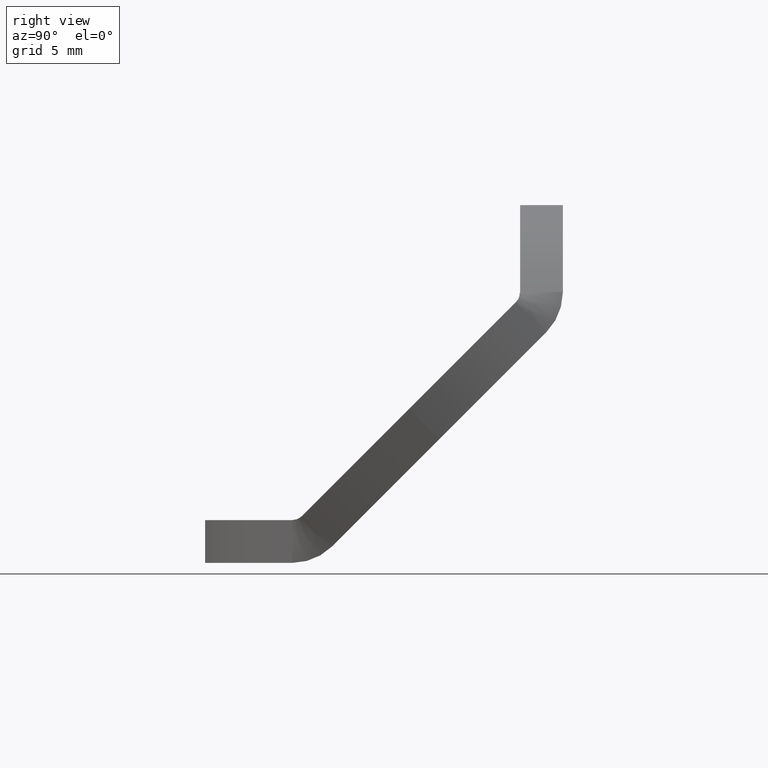
[diagram: clean part render]
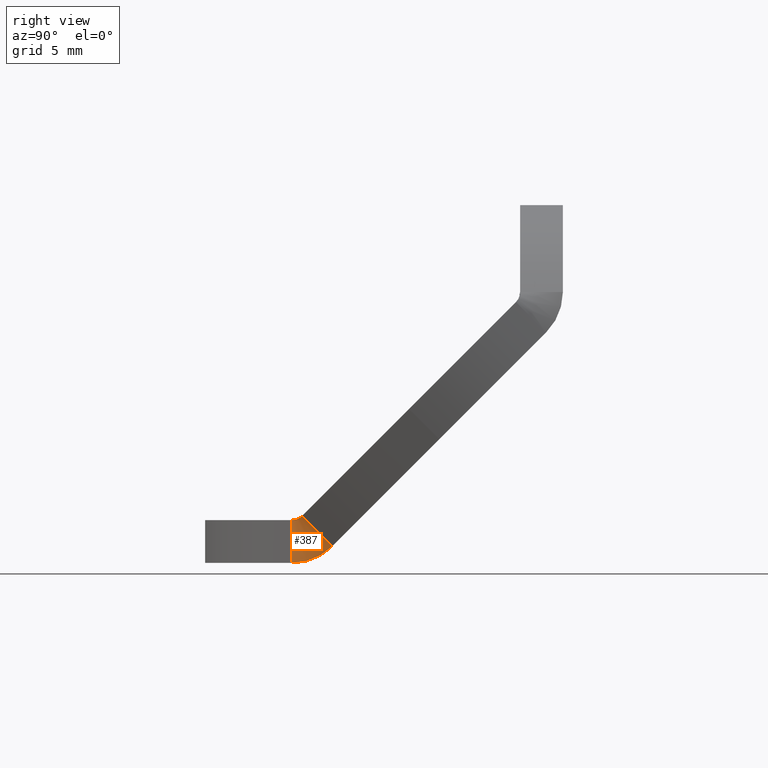
[diagram: same view with one face highlighted and labeled with its STEP entity id]
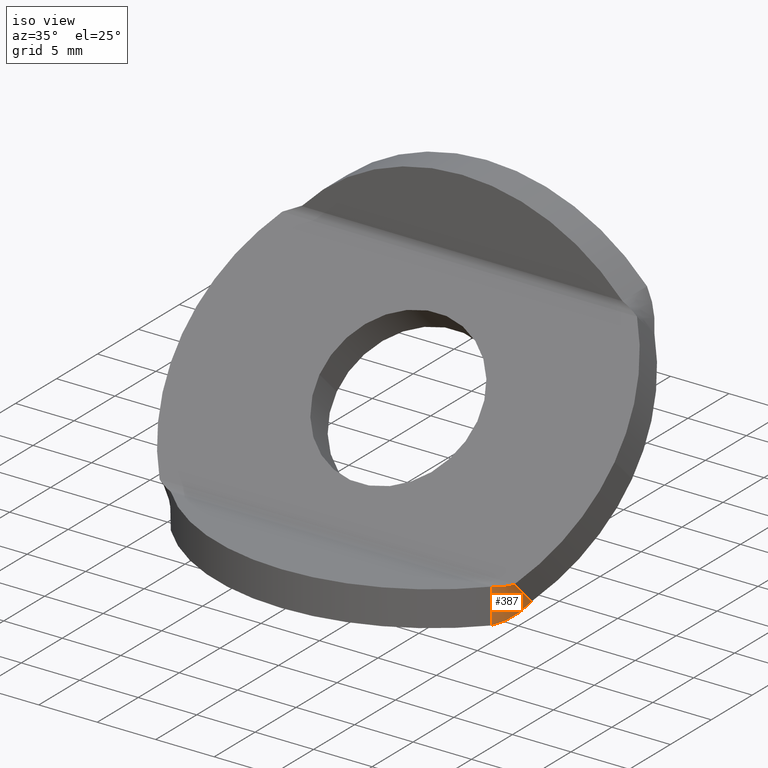
[diagram: same view with one face highlighted and labeled with its STEP entity id]
A machine part, right view. The second image highlights one B-rep face of the part: STEP entity #387.
A second angle (iso view) of the same face is appended — the face is thin or edge-on in the first view.
In plain terms, the highlighted face is a freeform B-spline surface patch.
Its self-contained STEP definition (entity closure, byte-faithful):
#109=CARTESIAN_POINT('',(35.831263199275767,-6.660618388563987,3.292893218813453));
#110=VERTEX_POINT('',#109);
#118=CARTESIAN_POINT('',(35.831263199275767,-5.725246501533150,2.357521331782615));
#119=VERTEX_POINT('',#118);
#120=CARTESIAN_POINT('',(35.831263199275767,-6.660618388563987,3.292893218813453));
#121=DIRECTION('',(0.0,0.707106781186547,-0.707106781186548));
#122=VECTOR('',#121,1.322815608501525);
#123=LINE('',#120,#122);
#124=EDGE_CURVE('',#110,#119,#123,.T.);
#126=CARTESIAN_POINT('',(35.831263199275767,-4.539298045004344,1.171572875253811));
#127=VERTEX_POINT('',#126);
#128=CARTESIAN_POINT('',(35.831263199275767,-5.725246501533150,2.357521331782615));
#129=DIRECTION('',(0.0,0.707106781186548,-0.707106781186547));
#130=VECTOR('',#129,1.677184391498475);
#131=LINE('',#128,#130);
#132=EDGE_CURVE('',#119,#127,#131,.T.);
#186=CARTESIAN_POINT('',(35.831263199275767,-6.660618852617905,3.292893682867370));
#187=CARTESIAN_POINT('',(35.831263199275767,-6.349491714211185,2.981766544460650));
#188=CARTESIAN_POINT('',(35.831263199275767,-5.642384756991387,2.274659587240853));
#189=CARTESIAN_POINT('',(35.831263199275767,-4.935277799771589,1.567552630021055));
#190=CARTESIAN_POINT('',(35.831263199275767,-4.539297980958510,1.171572811207978));
#191=CARTESIAN_POINT('',(35.815899758778649,-6.667323320050766,3.286189152138234));
#192=CARTESIAN_POINT('',(35.815907731569567,-6.359140559978749,2.972117600094008));
#193=CARTESIAN_POINT('',(35.815915628322557,-5.658716179519765,2.258327982825376));
#194=CARTESIAN_POINT('',(35.815922139824231,-4.958292024686895,1.544538140690138));
#195=CARTESIAN_POINT('',(35.815925398754430,-4.566054641072848,1.144815840672243));
#196=CARTESIAN_POINT('',(35.785240938505531,-6.680843694421913,3.273047996936107));
#197=CARTESIAN_POINT('',(35.785237246469599,-6.378618085629675,2.953186161142398));
#198=CARTESIAN_POINT('',(35.785233589645266,-5.691746128453477,2.226223369352703));
#199=CARTESIAN_POINT('',(35.785230574302403,-5.004874066794455,1.499260681694122));
#200=CARTESIAN_POINT('',(35.785229065158667,-4.620225756447859,1.092161686744138));
#201=CARTESIAN_POINT('',(35.738785956804762,-6.701680703705632,3.253910522054242));
#202=CARTESIAN_POINT('',(35.738786942792714,-6.408620109215452,2.925631463585142));
#203=CARTESIAN_POINT('',(35.738787919377124,-5.742572332302933,2.179544015741982));
#204=CARTESIAN_POINT('',(35.738788724648742,-5.076524583293394,1.433456540089769));
#205=CARTESIAN_POINT('',(35.738789127677741,-4.703537924828990,1.015647627002568));
#206=CARTESIAN_POINT('',(35.692081404722089,-6.722971070431437,3.235438184107938));
#207=CARTESIAN_POINT('',(35.692081141414384,-6.439279124146017,2.899030412695012));
#208=CARTESIAN_POINT('',(35.692080880617880,-5.794525164339406,2.134467182208982));
#209=CARTESIAN_POINT('',(35.692080665570401,-5.149771197081315,1.369903959149348));
#210=CARTESIAN_POINT('',(35.692080557941658,-4.788709043637357,0.941748639933639));
#211=CARTESIAN_POINT('',(35.645083877038161,-6.744708331186145,3.217624660615377));
#212=CARTESIAN_POINT('',(35.645083947352148,-6.470580556720187,2.873379163457848));
#213=CARTESIAN_POINT('',(35.645084016995547,-5.847562961075440,2.091003308787390));
#214=CARTESIAN_POINT('',(35.645084074422073,-5.224545367420544,1.308627452133779));
#215=CARTESIAN_POINT('',(35.645084103163377,-4.875655583606889,0.870497057273172));
#216=CARTESIAN_POINT('',(35.597806087564635,-6.766866017583363,3.200482823919065));
#217=CARTESIAN_POINT('',(35.597806068788508,-6.502487698850005,2.848694847526240));
#218=CARTESIAN_POINT('',(35.597806050191444,-5.901628054340178,2.049176896185617));
#219=CARTESIAN_POINT('',(35.597806034856688,-5.300768409298996,1.249658945374559));
#220=CARTESIAN_POINT('',(35.597806027181825,-4.964287073544817,0.801928980399808));
#221=CARTESIAN_POINT('',(35.550245770239492,-6.789422893670960,3.184019439127598));
#222=CARTESIAN_POINT('',(35.550245775253181,-6.534969595182076,2.824987581730910));
#223=CARTESIAN_POINT('',(35.550245780219043,-5.956666781841663,2.009006295973304));
#224=CARTESIAN_POINT('',(35.550245784313795,-5.378363968643134,1.193025010074290));
#225=CARTESIAN_POINT('',(35.550245786363163,-5.054514456455893,0.736075579050329));
#226=CARTESIAN_POINT('',(35.502404666007536,-6.812356250197622,3.168241926923253));
#227=CARTESIAN_POINT('',(35.502404664668802,-6.567993644674016,2.802267951700754));
#228=CARTESIAN_POINT('',(35.502404663342837,-6.012624226066477,1.970509122026132));
#229=CARTESIAN_POINT('',(35.502404662249475,-5.457254807421053,1.138750292389269));
#230=CARTESIAN_POINT('',(35.502404661702258,-5.146247993625715,0.672965438648220));
#231=CARTESIAN_POINT('',(35.454283452529815,-6.835643728635121,3.153156564665723));
#232=CARTESIAN_POINT('',(35.454283452887267,-6.601527624253395,2.780545023581658));
#233=CARTESIAN_POINT('',(35.454283453241310,-6.069445700505214,1.933700822648121));
#234=CARTESIAN_POINT('',(35.454283453533243,-5.537363776767150,1.086856621704504));
#235=CARTESIAN_POINT('',(35.454283453679352,-5.239397957590647,0.612623961665170));
#236=CARTESIAN_POINT('',(35.405883098092595,-6.859262866812791,3.138768974902862));
#237=CARTESIAN_POINT('',(35.405883097997162,-6.635539195533926,2.759826886704039));
#238=CARTESIAN_POINT('',(35.405883097902631,-6.127076432587769,1.898595081741004));
#239=CARTESIAN_POINT('',(35.405883097824685,-5.618613669638911,1.037363276780661));
#240=CARTESIAN_POINT('',(35.405883097785669,-5.333874577920904,0.555073560067142));
#241=CARTESIAN_POINT('',(35.357204500060043,-6.883191252305485,3.125084004137742));
#242=CARTESIAN_POINT('',(35.357204500085530,-6.669996082702673,2.740120521941591));
#243=CARTESIAN_POINT('',(35.357204500110768,-6.185461726577585,1.865203734157314));
#244=CARTESIAN_POINT('',(35.357204500131580,-5.700927370453218,0.990286946372319));
#245=CARTESIAN_POINT('',(35.357204500141989,-5.429588183944481,0.500333640770657));
#246=CARTESIAN_POINT('',(35.308248581391027,-6.907406512861080,3.112105765437423));
#247=CARTESIAN_POINT('',(35.308248581384227,-6.704866070215021,2.721431851603851));
#248=CARTESIAN_POINT('',(35.308248581377491,-6.244546996654339,1.833536813282505));
#249=CARTESIAN_POINT('',(35.308248581371934,-5.784227923093465,0.945641774961350));
#250=CARTESIAN_POINT('',(35.308248581369149,-5.526449292175230,0.448420650477188));
#251=CARTESIAN_POINT('',(35.259016264846537,-6.931886349633261,3.099837638283221));
#252=CARTESIAN_POINT('',(35.259016264848348,-6.740117047584850,2.703765742281554));
#253=CARTESIAN_POINT('',(35.259016264850146,-6.304277832932344,1.803602565724291));
#254=CARTESIAN_POINT('',(35.259016264851624,-5.868438618279890,0.903439389166978));
#255=CARTESIAN_POINT('',(35.259016264852363,-5.624368705676758,0.399348108610418));
#256=CARTESIAN_POINT('',(35.209508479853994,-6.956608558249821,3.088282280788955));
#257=CARTESIAN_POINT('',(35.209508479853518,-6.775717040541236,2.687126021623661));
#258=CARTESIAN_POINT('',(35.209508479853049,-6.364600056890614,1.775407477105674));
#259=CARTESIAN_POINT('',(35.209508479852659,-5.953483073239978,0.863688932587699));
#260=CARTESIAN_POINT('',(35.209508479852460,-5.723257607297692,0.353126647235263));
#261=CARTESIAN_POINT('',(35.159726160653236,-6.981551052366527,3.077441639529585));
#262=CARTESIAN_POINT('',(35.159726160653321,-6.811634244727634,2.671515492708789));
#263=CARTESIAN_POINT('',(35.159726160653406,-6.425459777770658,1.748956297119944));
#264=CARTESIAN_POINT('',(35.159726160653470,-6.039285310813685,0.826397101531096));
#265=CARTESIAN_POINT('',(35.159726160653506,-5.823027651495639,0.309764052762978));
#266=CARTESIAN_POINT('',(35.109670246766086,-7.006691885772492,3.067316960881083));
#267=CARTESIAN_POINT('',(35.109670246766179,-6.847837057591590,2.656935950316388));
#268=CARTESIAN_POINT('',(35.109670246766321,-6.486803446798386,1.724252066913524));
#269=CARTESIAN_POINT('',(35.109670246766434,-6.125769836005182,0.791568183510661));
#270=CARTESIAN_POINT('',(35.109670246766491,-5.923591053392969,0.269265310672512));
#271=CARTESIAN_POINT('',(35.059341682859859,-7.032009274067500,3.057908802790425));
#272=CARTESIAN_POINT('',(35.059341682859412,-6.884294109585916,2.643388197891074));
#273=CARTESIAN_POINT('',(35.059341682858779,-6.548577910007814,1.701296147881218));
#274=CARTESIAN_POINT('',(35.059341682858253,-6.212861710429711,0.759204097871362));
#275=CARTESIAN_POINT('',(35.059341682857990,-6.024860675332795,0.231632652760853));
#276=CARTESIAN_POINT('',(35.008741418719367,-7.057481615644733,3.049217047224178));
#277=CARTESIAN_POINT('',(35.008741418721073,-6.920974294382756,2.630872065464454));
#278=CARTESIAN_POINT('',(35.008741418723432,-6.610730459431113,1.680088252020354));
#279=CARTESIAN_POINT('',(35.008741418725393,-6.300486624479474,0.729304438576254));
#280=CARTESIAN_POINT('',(35.008741418726380,-6.126750110791296,0.196865606891881));
#281=CARTESIAN_POINT('',(34.957870409387468,-7.083087511931304,3.041240913189096));
#282=CARTESIAN_POINT('',(34.957870409381094,-6.957846798038370,2.619386428405921));
#283=CARTESIAN_POINT('',(34.957870409372291,-6.673208882585318,1.660626473706607));
#284=CARTESIAN_POINT('',(34.957870409364986,-6.388570967132254,0.701866519007291));
#285=CARTESIAN_POINT('',(34.957870409361313,-6.229173765566596,0.164961049091147));
#286=CARTESIAN_POINT('',(34.906729614525112,-7.108805787252905,3.033978970312144));
#287=CARTESIAN_POINT('',(34.906729614548809,-6.994881127525943,2.608929226977536));
#288=CARTESIAN_POINT('',(34.906729614581529,-6.735961510552366,1.642907322827554));
#289=CARTESIAN_POINT('',(34.906729614608686,-6.477041893578830,0.676885418677573));
#290=CARTESIAN_POINT('',(34.906729614622336,-6.332046936352807,0.135913257862207));
#291=CARTESIAN_POINT('',(34.855320000715032,-7.134615506830960,3.027429152944452));
#292=CARTESIAN_POINT('',(34.855320000626939,-7.032047136921264,2.599497486643976));
#293=CARTESIAN_POINT('',(34.855320000505294,-6.798937263345893,1.626925759197461));
#294=CARTESIAN_POINT('',(34.855320000404340,-6.565827389770369,0.654354031750939));
#295=CARTESIAN_POINT('',(34.855320000353615,-6.435285886028135,0.109713970604876));
#296=CARTESIAN_POINT('',(34.803642532808723,-7.160495998420659,3.021588774750597));
#297=CARTESIAN_POINT('',(34.803642533136227,-7.069315057558403,2.591087339080518));
#298=CARTESIAN_POINT('',(34.803642533588430,-6.862085697302676,1.612675228152630));
#299=CARTESIAN_POINT('',(34.803642533963718,-6.654856337047516,0.634263117224767));
#300=CARTESIAN_POINT('',(34.803642534152281,-6.538807917938646,0.086352441967047));
#301=CARTESIAN_POINT('',(34.751698206008484,-7.186426857060361,3.016454543780255));
#302=CARTESIAN_POINT('',(34.751698204791076,-7.106655508597813,2.583694043878316));
#303=CARTESIAN_POINT('',(34.751698203110109,-6.925357036765411,1.600147697335021));
#304=CARTESIAN_POINT('',(34.751698201715072,-6.744058564930899,0.616601350791633));
#305=CARTESIAN_POINT('',(34.751698201014115,-6.642531440503109,0.065815504149945));
#306=CARTESIAN_POINT('',(34.699487926522991,-7.212388009206396,3.012022577879820));
#307=CARTESIAN_POINT('',(34.699487931048246,-7.144039575518979,2.577312010729424));
#308=CARTESIAN_POINT('',(34.699487937296603,-6.988702255876229,1.589333694264313));
#309=CARTESIAN_POINT('',(34.699487942482101,-6.833364936241320,0.601355377799554));
#310=CARTESIAN_POINT('',(34.699487945087640,-6.746376054218462,0.048087628486080));
#311=CARTESIAN_POINT('',(34.647012955099420,-7.238359552693674,3.008288420822698));
#312=CARTESIAN_POINT('',(34.647012938279069,-7.181438631188540,2.571934822683057));
#313=CARTESIAN_POINT('',(34.647012915054020,-7.052072965732933,1.580222345815819));
#314=CARTESIAN_POINT('',(34.647012895779589,-6.922707300248180,0.588509868947276));
#315=CARTESIAN_POINT('',(34.647012886094821,-6.850262541680733,0.033150990215068));
#316=CARTESIAN_POINT('',(34.594273258327583,-7.264322426498840,3.005247057599816));
#317=CARTESIAN_POINT('',(34.594273320846483,-7.218825108801583,2.567555258057537));
#318=CARTESIAN_POINT('',(34.594273407170775,-7.115422016578187,1.572801415083358));
#319=CARTESIAN_POINT('',(34.594273478811161,-7.012018924463115,0.578047572114033));
#320=CARTESIAN_POINT('',(34.594273514808094,-6.954113204266232,0.020985528699268));
#321=CARTESIAN_POINT('',(34.541273636538193,-7.290255992733101,3.002892934513338));
#322=CARTESIAN_POINT('',(34.541273404172244,-7.256169731797215,2.564165319770744));
#323=CARTESIAN_POINT('',(34.541273083328065,-7.178701433792551,1.567057352065817));
#324=CARTESIAN_POINT('',(34.541272817060005,-7.101233135385273,0.569949384342848));
#325=CARTESIAN_POINT('',(34.541272683269057,-7.057850896389254,0.011569031316828));
#326=CARTESIAN_POINT('',(34.488000947917016,-7.316147091658245,3.001219962951468));
#327=CARTESIAN_POINT('',(34.488001811528520,-7.293451907336438,2.561756239305830));
#328=CARTESIAN_POINT('',(34.488003003978342,-7.241870254981935,1.562975296715629));
#329=CARTESIAN_POINT('',(34.488003993590496,-7.190288604123781,0.564194354192484));
#330=CARTESIAN_POINT('',(34.488004490838073,-7.161402886574074,0.004877135484622));
#331=CARTESIAN_POINT('',(34.434508757469729,-7.341956452141509,3.000221585200852));
#332=CARTESIAN_POINT('',(34.434505547883340,-7.330621190556430,2.560318576944614));
#333=CARTESIAN_POINT('',(34.434501116179142,-7.304865559739664,1.560539262423174));
#334=CARTESIAN_POINT('',(34.434497438315084,-7.279109923361756,0.560759947652522));
#335=CARTESIAN_POINT('',(34.434495590309282,-7.264686764982420,0.000883640507630));
#336=CARTESIAN_POINT('',(34.398520731514949,-7.359172120273493,3.000000624514562));
#337=CARTESIAN_POINT('',(34.398527627824990,-7.355402355597488,2.560000388218171));
#338=CARTESIAN_POINT('',(34.398537150050743,-7.346821129189917,1.560000096129857));
#339=CARTESIAN_POINT('',(34.398545052530309,-7.338239914731350,0.559999804577013));
#340=CARTESIAN_POINT('',(34.398549023266540,-7.333434445929902,-0.000000249324756));
#341=CARTESIAN_POINT('',(34.380578876254539,-7.367725169750536,3.000000656271343));
#342=CARTESIAN_POINT('',(34.380578876254539,-7.367725169750535,2.560000437514229));
#343=CARTESIAN_POINT('',(34.380578876254539,-7.367725169750534,1.560000188565619));
#344=CARTESIAN_POINT('',(34.380578876254539,-7.367725169750533,0.559999939617009));
#345=CARTESIAN_POINT('',(34.380578876254539,-7.367725169750533,-0.000000090574486));
#346=B_SPLINE_SURFACE_WITH_KNOTS('',3,3,((#186,#191,#196,#201,#206,#211,#216,#221,#226,#231,#236,#241,#246,#251,#256,#261,#266,#271,#276,#281,#286,#291,#296,#301,#306,#311,#316,#321,#326,#331,#336,#341),(#187,#192,#197,#202,#207,#212,#217,#222,#227,#232,#237,#242,#247,#252,#257,#262,#267,#272,#277,#282,#287,#292,#297,#302,#307,#312,#317,#322,#327,#332,#337,#342),(#188,#193,#198,#203,#208,#213,#218,#223,#228,#233,#238,#243,#248,#253,#258,#263,#268,#273,#278,#283,#288,#293,#298,#303,#308,#313,#318,#323,#328,#333,#338,#343),(#189,#194,#199,#204,#209,#214,#219,#224,#229,#234,#239,#244,#249,#254,#259,#264,#269,#274,#279,#284,#289,#294,#299,#304,#309,#314,#319,#324,#329,#334,#339,#344),(#190,#195,#200,#205,#210,#215,#220,#225,#230,#235,#240,#245,#250,#255,#260,#265,#270,#275,#280,#285,#290,#295,#300,#305,#310,#315,#320,#325,#330,#335,#340,#345)),.UNSPECIFIED.,.F.,.F.,.U.,(4,1,4),(4,1,1,1,1,1,1,1,1,1,1,1,1,1,1,1,1,1,1,1,1,1,1,1,1,1,1,1,1,4),(0.049999934372866,0.182000000000000,0.350000009057449),(0.0,0.022556581301715,0.045063460919286,0.067520276719963,0.089926667512157,0.112282273062293,0.134586734111642,0.156839692393158,0.179040790648285,0.201189672643775,0.223285983188500,0.245329368150272,0.267319474472665,0.289255950191856,0.311138444453486,0.332966607529529,0.354740090835207,0.376458546945922,0.398121629614222,0.419728993786817,0.441280295621636,0.462775192504921,0.484213343068397,0.505594407206479,0.526918046093562,0.548183922201358,0.569391699316327,0.590541042557179,0.611631618392449,0.632663094658185),.UNSPECIFIED.);
#347=CARTESIAN_POINT('',(34.380578876254539,-7.367725169750537,0.0));
#348=VERTEX_POINT('',#347);
#349=CARTESIAN_POINT('',(35.831263199275767,-4.539298045004345,1.171572875253810));
#350=CARTESIAN_POINT('',(35.614493037828041,-4.917453898469554,0.793417021788633));
#351=CARTESIAN_POINT('',(35.388835773148692,-5.363078445237602,0.499248443485425));
#352=CARTESIAN_POINT('',(34.904650826542678,-6.335176500176334,0.099706827878225));
#353=CARTESIAN_POINT('',(34.651565325823952,-6.850627491872700,4.289167E-015));
#354=CARTESIAN_POINT('',(34.380578876254539,-7.367725169750536,-5.551115E-016));
#355=B_SPLINE_CURVE_WITH_KNOTS('',3,(#349,#350,#351,#352,#353,#354),.UNSPECIFIED.,.F.,.U.,(4,2,4),(0.0,0.173116637479662,0.347672815205374),.UNSPECIFIED.);
#356=EDGE_CURVE('',#127,#348,#355,.T.);
#357=ORIENTED_EDGE('',*,*,#356,.F.);
#358=ORIENTED_EDGE('',*,*,#132,.F.);
#359=ORIENTED_EDGE('',*,*,#124,.F.);
#360=CARTESIAN_POINT('',(34.380578876254539,-7.367725169750537,3.000000000000000));
#361=VERTEX_POINT('',#360);
#362=CARTESIAN_POINT('',(34.380578876254539,-7.367725169750536,3.000000000000001));
#363=CARTESIAN_POINT('',(34.642702677265220,-7.242768230840214,3.000000000000005));
#364=CARTESIAN_POINT('',(34.895525736996220,-7.114168112639860,3.023044237835914));
#365=CARTESIAN_POINT('',(35.379510051705651,-6.871244301051780,3.122888252034978));
#366=CARTESIAN_POINT('',(35.605990592885853,-6.758925859034839,3.194585748342635));
#367=CARTESIAN_POINT('',(35.831263199275767,-6.660618388563988,3.292893218813453));
#368=B_SPLINE_CURVE_WITH_KNOTS('',3,(#362,#363,#364,#365,#366,#367),.UNSPECIFIED.,.F.,.U.,(4,2,4),(0.0,0.087115332332668,0.167165424555145),.UNSPECIFIED.);
#369=EDGE_CURVE('',#361,#110,#368,.T.);
#370=ORIENTED_EDGE('',*,*,#369,.F.);
#371=CARTESIAN_POINT('',(34.380578876254539,-7.367725169750536,1.682899955775679));
#372=VERTEX_POINT('',#371);
#373=CARTESIAN_POINT('',(34.380578876254539,-7.367725169750536,1.682899955775679));
#374=DIRECTION('',(0.0,0.0,1.0));
#375=VECTOR('',#374,1.317100044224322);
#376=LINE('',#373,#375);
#377=EDGE_CURVE('',#372,#361,#376,.T.);
#378=ORIENTED_EDGE('',*,*,#377,.F.);
#379=CARTESIAN_POINT('',(34.380578876254539,-7.367725169750537,0.0));
#380=DIRECTION('',(0.0,0.0,1.0));
#381=VECTOR('',#380,1.682899955775679);
#382=LINE('',#379,#381);
#383=EDGE_CURVE('',#348,#372,#382,.T.);
#384=ORIENTED_EDGE('',*,*,#383,.F.);
#385=EDGE_LOOP('',(#357,#358,#359,#370,#378,#384));
#386=FACE_OUTER_BOUND('',#385,.T.);
#387=ADVANCED_FACE('',(#386),#346,.F.);